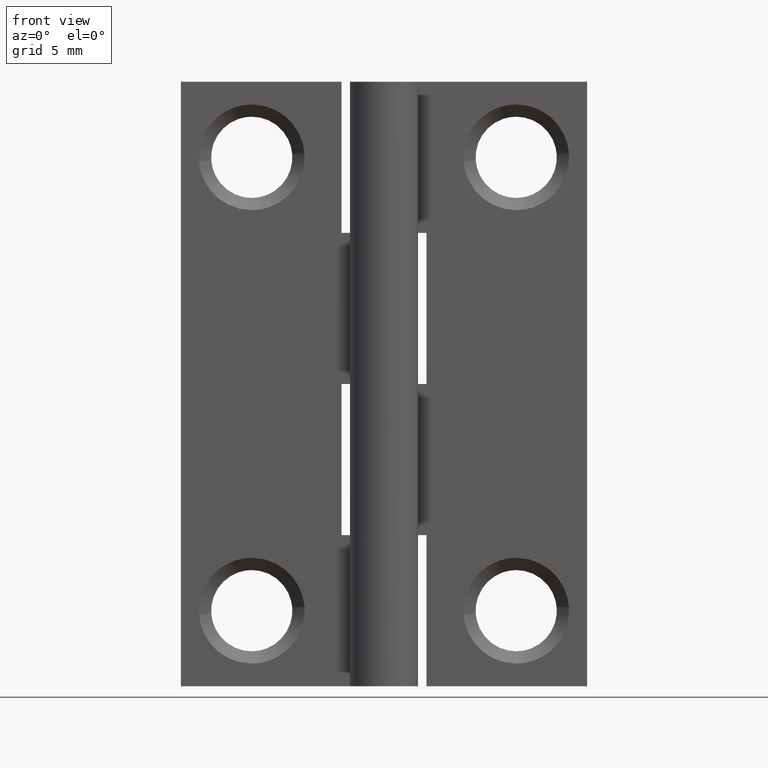
[diagram: clean part render]
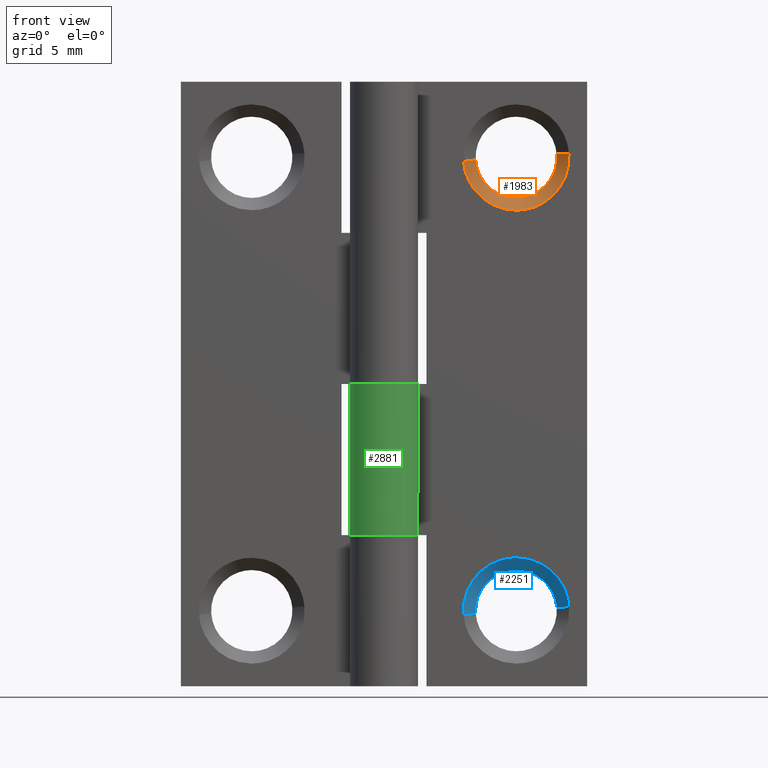
[diagram: same view with three faces highlighted in distinct colors, each labeled with its STEP entity id]
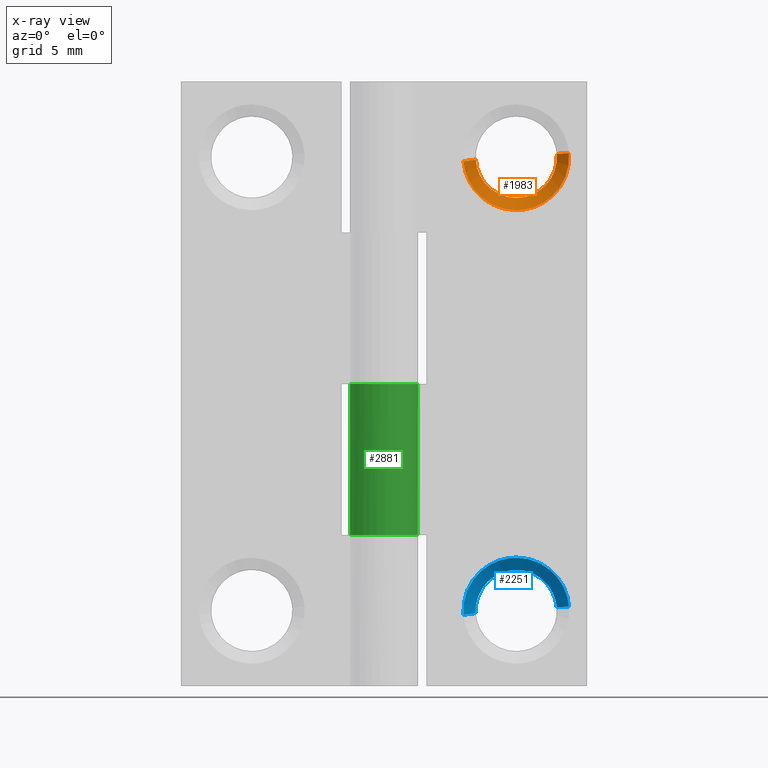
[diagram: x-ray of the same camera — body ghosted, the three highlighted faces saturated]
A machine part, front view with three faces highlighted in distinct colors.
The next image is the same camera in x-ray (body ghosted, the three faces saturated) — at least one of them is partly hidden behind the body in this view.
Their STEP definitions:

[orange] entity #1983 — the highlighted face is a freeform B-spline surface patch.
#1674=CARTESIAN_POINT('',(9.135958792531758,1.650000035762785,27.754683567730851));
#1675=VERTEX_POINT('',#1674);
#1676=CARTESIAN_POINT('',(7.0,1.650000035762785,25.849999964237220));
#1677=VERTEX_POINT('',#1676);
#1678=CARTESIAN_POINT('',(9.135958792531758,1.650000035762786,27.754683567730847));
#1679=CARTESIAN_POINT('',(8.917204494155522,1.650000035762785,25.849999964237220));
#1680=CARTESIAN_POINT('',(7.0,1.650000035762785,25.849999964237220));
#1688=(BOUNDED_CURVE()B_SPLINE_CURVE(2,(#1678,#1679,#1680),.UNSPECIFIED.,.F.,.U.)B_SPLINE_CURVE_WITH_KNOTS((3,3),(0.269767755879296,0.500000000000000),.UNSPECIFIED.)CURVE()GEOMETRIC_REPRESENTATION_ITEM()RATIONAL_B_SPLINE_CURVE((0.957343736455363,0.730266147779370,1.0))REPRESENTATION_ITEM(''));
#1689=EDGE_CURVE('',#1675,#1677,#1688,.T.);
#1728=CARTESIAN_POINT('',(4.854010156624582,1.650000035762785,27.868745638302801));
#1729=VERTEX_POINT('',#1728);
#1735=CARTESIAN_POINT('',(7.0,1.650000035762785,25.849999964237220));
#1736=CARTESIAN_POINT('',(4.977481922566955,1.650000035762786,25.849999964237227));
#1737=CARTESIAN_POINT('',(4.854010156624582,1.650000035762786,27.868745638302798));
#1745=(BOUNDED_CURVE()B_SPLINE_CURVE(2,(#1735,#1736,#1737),.UNSPECIFIED.,.F.,.U.)B_SPLINE_CURVE_WITH_KNOTS((3,3),(0.500000000000000,0.739332962237160),.UNSPECIFIED.)CURVE()GEOMETRIC_REPRESENTATION_ITEM()RATIONAL_B_SPLINE_CURVE((1.0,0.719603993288799,0.976072041662896))REPRESENTATION_ITEM(''));
#1746=EDGE_CURVE('',#1677,#1729,#1745,.T.);
#1773=CARTESIAN_POINT('',(9.143372303184854,1.650000035747364,28.168687058739959));
#1774=VERTEX_POINT('',#1773);
#1775=CARTESIAN_POINT('',(9.143372303184854,1.650000035747364,28.168687058739962));
#1776=CARTESIAN_POINT('',(9.150000035762785,1.650000035762786,28.084473731590130));
#1777=CARTESIAN_POINT('',(9.150000035762785,1.650000035762785,28.0));
#1778=CARTESIAN_POINT('',(9.150000035762785,1.650000035762786,27.876939942631537));
#1779=CARTESIAN_POINT('',(9.135958792531758,1.650000035762785,27.754683567730851));
#1787=(BOUNDED_CURVE()B_SPLINE_CURVE(2,(#1775,#1776,#1777,#1778,#1779),.UNSPECIFIED.,.F.,.U.)B_SPLINE_CURVE_WITH_KNOTS((3,2,3),(0.236331300613897,0.250000000000000,0.269767755879296),.UNSPECIFIED.)CURVE()GEOMETRIC_REPRESENTATION_ITEM()RATIONAL_B_SPLINE_CURVE((0.969723356132436,0.983986122559244,1.0,0.976840633407178,0.957343736455363))REPRESENTATION_ITEM(''));
#1788=EDGE_CURVE('',#1774,#1675,#1787,.T.);
#1876=CARTESIAN_POINT('',(9.791368486916333,1.000000059603890,28.219685464302589));
#1877=VERTEX_POINT('',#1876);
#1878=CARTESIAN_POINT('',(9.143372303184854,1.650000035747364,28.168687058739959));
#1879=CARTESIAN_POINT('',(9.791368486916333,1.000000059603890,28.219685464302589));
#1880=QUASI_UNIFORM_CURVE('',1,(#1878,#1879),.UNSPECIFIED.,.F.,.U.);
#1881=EDGE_CURVE('',#1774,#1877,#1880,.T.);
#1898=CARTESIAN_POINT('',(4.208631513083667,1.000000059603889,27.780314535697411));
#1899=VERTEX_POINT('',#1898);
#1915=CARTESIAN_POINT('',(4.854010156624582,1.650000035762785,27.868745638302801));
#1916=CARTESIAN_POINT('',(4.208631513083667,1.000000059603889,27.780314535697411));
#1917=QUASI_UNIFORM_CURVE('',1,(#1915,#1916),.UNSPECIFIED.,.F.,.U.);
#1918=EDGE_CURVE('',#1729,#1899,#1917,.T.);
#1924=CARTESIAN_POINT('',(4.867592168268005,1.666250035166739,27.899110386965162));
#1925=CARTESIAN_POINT('',(4.870192819903746,1.666250035166739,27.866065974833933));
#1926=CARTESIAN_POINT('',(5.040239699893550,1.666250035166738,25.705415502935782));
#1927=CARTESIAN_POINT('',(7.167412098478885,1.666250035166739,25.872827601414659));
#1928=CARTESIAN_POINT('',(9.294584497064220,1.666250035166738,26.040239699893554));
#1929=CARTESIAN_POINT('',(9.125984811217583,1.666250035166740,28.182501826715701));
#1930=CARTESIAN_POINT('',(9.124804182489871,1.666250035166738,28.197503137047327));
#1931=CARTESIAN_POINT('',(4.185115578668744,0.983343810215592,27.866820691717660));
#1932=CARTESIAN_POINT('',(4.188548568205655,0.983343810215591,27.823200423804515));
#1933=CARTESIAN_POINT('',(4.413018909317890,0.983343810215591,24.971034312433503));
#1934=CARTESIAN_POINT('',(7.220992298442193,0.983343810215591,25.192026610875700));
#1935=CARTESIAN_POINT('',(10.028965687566496,0.983343810215591,25.413018909317888));
#1936=CARTESIAN_POINT('',(9.806405714718538,0.983343810215592,28.240911490401558));
#1937=CARTESIAN_POINT('',(9.804847226063810,0.983343810215591,28.260713966327454));
#1945=(BOUNDED_SURFACE()B_SPLINE_SURFACE(2,1,((#1924,#1931),(#1925,#1932),(#1926,#1933),(#1927,#1934),(#1928,#1935),(#1929,#1936),(#1930,#1937)),.UNSPECIFIED.,.F.,.F.,.U.)B_SPLINE_SURFACE_WITH_KNOTS((3,1,2,1,3),(2,2),(0.0,0.104551761113601,4.771340555737529,9.438129350361457,9.485085216914408),(0.0,1.0),.UNSPECIFIED.)GEOMETRIC_REPRESENTATION_ITEM()RATIONAL_B_SPLINE_SURFACE(((1.013123585914346,1.013123585914346),(1.006561792957173,1.006561792957173),(0.707106781186548,0.707106781186548),(1.0,1.0),(0.707106781186548,0.707106781186548),(1.002947006068222,1.002947006068222),(1.005894012136445,1.005894012136445)))REPRESENTATION_ITEM('')SURFACE());
#1946=ORIENTED_EDGE('',*,*,#1788,.T.);
#1947=ORIENTED_EDGE('',*,*,#1689,.T.);
#1948=ORIENTED_EDGE('',*,*,#1746,.T.);
#1949=ORIENTED_EDGE('',*,*,#1918,.T.);
#1950=CARTESIAN_POINT('',(7.0,1.000000059604644,25.200000047683719));
#1951=VERTEX_POINT('',#1950);
#1952=CARTESIAN_POINT('',(7.0,1.000000059604644,25.200000047683719));
#1953=CARTESIAN_POINT('',(4.411706667446135,1.000000059604644,25.200000047683712));
#1954=CARTESIAN_POINT('',(4.208631513083667,1.000000059603889,27.780314535697411));
#1962=(BOUNDED_CURVE()B_SPLINE_CURVE(2,(#1952,#1953,#1954),.UNSPECIFIED.,.F.,.U.)B_SPLINE_CURVE_WITH_KNOTS((3,3),(0.500000000000000,0.736331300632058),.UNSPECIFIED.)CURVE()GEOMETRIC_REPRESENTATION_ITEM()RATIONAL_B_SPLINE_CURVE((1.0,0.723120658606027,0.969723356170336))REPRESENTATION_ITEM(''));
#1963=EDGE_CURVE('',#1951,#1899,#1962,.T.);
#1964=ORIENTED_EDGE('',*,*,#1963,.F.);
#1965=CARTESIAN_POINT('',(9.791368486916333,1.000000059603890,28.219685464302589));
#1966=CARTESIAN_POINT('',(9.799999952316284,1.000000059604644,28.110012297753784));
#1967=CARTESIAN_POINT('',(9.799999952316284,1.000000059604644,28.0));
#1968=CARTESIAN_POINT('',(9.799999952316284,1.000000059604644,25.200000047683719));
#1969=CARTESIAN_POINT('',(7.0,1.000000059604644,25.200000047683719));
#1977=(BOUNDED_CURVE()B_SPLINE_CURVE(2,(#1965,#1966,#1967,#1968,#1969),.UNSPECIFIED.,.F.,.U.)B_SPLINE_CURVE_WITH_KNOTS((3,2,3),(0.236331300632056,0.250000000000000,0.500000000000000),.UNSPECIFIED.)CURVE()GEOMETRIC_REPRESENTATION_ITEM()RATIONAL_B_SPLINE_CURVE((0.969723356170332,0.983986122580518,1.0,0.707106781186547,1.0))REPRESENTATION_ITEM(''));
#1978=EDGE_CURVE('',#1877,#1951,#1977,.T.);
#1979=ORIENTED_EDGE('',*,*,#1978,.F.);
#1980=ORIENTED_EDGE('',*,*,#1881,.F.);
#1981=EDGE_LOOP('',(#1946,#1947,#1948,#1949,#1964,#1979,#1980));
#1982=FACE_OUTER_BOUND('',#1981,.T.);
#1983=ADVANCED_FACE('',(#1982),#1945,.F.);

[blue] entity #2251 — the highlighted face is a freeform B-spline surface patch.
#2056=CARTESIAN_POINT('',(4.854010156624582,1.650000035762785,3.868745638302801));
#2057=VERTEX_POINT('',#2056);
#2101=CARTESIAN_POINT('',(9.143372303184854,1.650000035747365,4.168687058739958));
#2102=VERTEX_POINT('',#2101);
#2118=CARTESIAN_POINT('',(7.0,1.650000035762785,6.150000035762785));
#2119=VERTEX_POINT('',#2118);
#2120=CARTESIAN_POINT('',(7.0,1.650000035762785,6.150000035762785));
#2121=CARTESIAN_POINT('',(8.987439589904479,1.650000035762785,6.150000035762784));
#2122=CARTESIAN_POINT('',(9.143372303184854,1.650000035747364,4.168687058739958));
#2130=(BOUNDED_CURVE()B_SPLINE_CURVE(2,(#2120,#2121,#2122),.UNSPECIFIED.,.F.,.U.)B_SPLINE_CURVE_WITH_KNOTS((3,3),(0.0,0.236331300613897),.UNSPECIFIED.)CURVE()GEOMETRIC_REPRESENTATION_ITEM()RATIONAL_B_SPLINE_CURVE((1.0,0.723120658627304,0.969723356132436))REPRESENTATION_ITEM(''));
#2131=EDGE_CURVE('',#2119,#2102,#2130,.T.);
#2133=CARTESIAN_POINT('',(4.854010156624582,1.650000035762786,3.868745638302801));
#2134=CARTESIAN_POINT('',(4.849999964237214,1.650000035762785,3.934311557785394));
#2135=CARTESIAN_POINT('',(4.849999964237215,1.650000035762785,4.0));
#2136=CARTESIAN_POINT('',(4.849999964237214,1.650000035762785,6.150000035762784));
#2137=CARTESIAN_POINT('',(7.0,1.650000035762785,6.150000035762785));
#2145=(BOUNDED_CURVE()B_SPLINE_CURVE(2,(#2133,#2134,#2135,#2136,#2137),.UNSPECIFIED.,.F.,.U.)B_SPLINE_CURVE_WITH_KNOTS((3,2,3),(0.739332962237160,0.750000000000000,1.0),.UNSPECIFIED.)CURVE()GEOMETRIC_REPRESENTATION_ITEM()RATIONAL_B_SPLINE_CURVE((0.976072041662896,0.987502787897748,1.0,0.707106781186547,1.0))REPRESENTATION_ITEM(''));
#2146=EDGE_CURVE('',#2057,#2119,#2145,.T.);
#2185=CARTESIAN_POINT('',(9.127172398585335,1.666250035166739,4.167412098478885));
#2186=CARTESIAN_POINT('',(8.959760300106451,1.666250035166738,6.294584497064221));
#2187=CARTESIAN_POINT('',(6.832587901521115,1.666250035166739,6.127172398585335));
#2188=CARTESIAN_POINT('',(4.705415502935780,1.666250035166738,5.959760300106453));
#2189=CARTESIAN_POINT('',(4.872827601414665,1.666250035166739,3.832587901521115));
#2190=CARTESIAN_POINT('',(9.807973389124303,0.983343810215591,4.220992298442193));
#2191=CARTESIAN_POINT('',(9.586981090682111,0.983343810215591,7.028965687566495));
#2192=CARTESIAN_POINT('',(6.779007701557807,0.983343810215591,6.807973389124303));
#2193=CARTESIAN_POINT('',(3.971034312433504,0.983343810215591,6.586981090682111));
#2194=CARTESIAN_POINT('',(4.192026610875697,0.983343810215591,3.779007701557807));
#2202=(BOUNDED_SURFACE()B_SPLINE_SURFACE(2,1,((#2185,#2190),(#2186,#2191),(#2187,#2192),(#2188,#2193),(#2189,#2194)),.UNSPECIFIED.,.F.,.F.,.U.)B_SPLINE_SURFACE_WITH_KNOTS((3,2,3),(2,2),(0.0,4.666788794623928,9.333577589247856),(0.0,1.0),.UNSPECIFIED.)GEOMETRIC_REPRESENTATION_ITEM()RATIONAL_B_SPLINE_SURFACE(((1.0,1.0),(0.707106781186548,0.707106781186548),(1.0,1.0),(0.707106781186548,0.707106781186548),(1.0,1.0)))REPRESENTATION_ITEM('')SURFACE());
#2203=ORIENTED_EDGE('',*,*,#2131,.T.);
#2204=CARTESIAN_POINT('',(9.791368486916332,1.000000059603889,4.219685464302588));
#2205=VERTEX_POINT('',#2204);
#2206=CARTESIAN_POINT('',(9.143372303184854,1.650000035747365,4.168687058739958));
#2207=CARTESIAN_POINT('',(9.791368486916332,1.000000059603889,4.219685464302588));
#2208=QUASI_UNIFORM_CURVE('',1,(#2206,#2207),.UNSPECIFIED.,.F.,.U.);
#2209=EDGE_CURVE('',#2102,#2205,#2208,.T.);
#2210=ORIENTED_EDGE('',*,*,#2209,.T.);
#2211=CARTESIAN_POINT('',(7.0,1.000000059604644,6.799999952316286));
#2212=VERTEX_POINT('',#2211);
#2213=CARTESIAN_POINT('',(7.0,1.000000059604644,6.799999952316286));
#2214=CARTESIAN_POINT('',(9.588293332553850,1.000000059604644,6.799999952316286));
#2215=CARTESIAN_POINT('',(9.791368486916332,1.000000059603889,4.219685464302588));
#2223=(BOUNDED_CURVE()B_SPLINE_CURVE(2,(#2213,#2214,#2215),.UNSPECIFIED.,.F.,.U.)B_SPLINE_CURVE_WITH_KNOTS((3,3),(0.0,0.236331300632057),.UNSPECIFIED.)CURVE()GEOMETRIC_REPRESENTATION_ITEM()RATIONAL_B_SPLINE_CURVE((1.0,0.723120658606029,0.969723356170333))REPRESENTATION_ITEM(''));
#2224=EDGE_CURVE('',#2212,#2205,#2223,.T.);
#2225=ORIENTED_EDGE('',*,*,#2224,.F.);
#2226=CARTESIAN_POINT('',(4.208631513083668,1.000000059603889,3.780314535697411));
#2227=VERTEX_POINT('',#2226);
#2228=CARTESIAN_POINT('',(4.208631513083668,1.000000059603889,3.780314535697410));
#2229=CARTESIAN_POINT('',(4.200000047683715,1.000000059604644,3.889987702246212));
#2230=CARTESIAN_POINT('',(4.200000047683715,1.000000059604644,4.0));
#2231=CARTESIAN_POINT('',(4.200000047683716,1.000000059604644,6.799999952316285));
#2232=CARTESIAN_POINT('',(7.0,1.000000059604644,6.799999952316286));
#2240=(BOUNDED_CURVE()B_SPLINE_CURVE(2,(#2228,#2229,#2230,#2231,#2232),.UNSPECIFIED.,.F.,.U.)B_SPLINE_CURVE_WITH_KNOTS((3,2,3),(0.736331300632056,0.750000000000000,1.0),.UNSPECIFIED.)CURVE()GEOMETRIC_REPRESENTATION_ITEM()RATIONAL_B_SPLINE_CURVE((0.969723356170333,0.983986122580518,1.0,0.707106781186547,1.0))REPRESENTATION_ITEM(''));
#2241=EDGE_CURVE('',#2227,#2212,#2240,.T.);
#2242=ORIENTED_EDGE('',*,*,#2241,.F.);
#2243=CARTESIAN_POINT('',(4.854010156624582,1.650000035762785,3.868745638302801));
#2244=CARTESIAN_POINT('',(4.208631513083668,1.000000059603889,3.780314535697411));
#2245=QUASI_UNIFORM_CURVE('',1,(#2243,#2244),.UNSPECIFIED.,.F.,.U.);
#2246=EDGE_CURVE('',#2057,#2227,#2245,.T.);
#2247=ORIENTED_EDGE('',*,*,#2246,.F.);
#2248=ORIENTED_EDGE('',*,*,#2146,.T.);
#2249=EDGE_LOOP('',(#2203,#2210,#2225,#2242,#2247,#2248));
#2250=FACE_OUTER_BOUND('',#2249,.T.);
#2251=ADVANCED_FACE('',(#2250),#2202,.F.);

[green] entity #2881 — the highlighted face is a freeform B-spline surface patch.
#2317=CARTESIAN_POINT('',(0.0,1.799998999999940,16.0));
#2318=VERTEX_POINT('',#2317);
#2319=CARTESIAN_POINT('',(1.528888485142075,0.949999999999989,16.0));
#2320=VERTEX_POINT('',#2319);
#2321=CARTESIAN_POINT('',(0.0,1.799998999999940,16.0));
#2322=CARTESIAN_POINT('',(-1.392801052929096,1.799998304105292,15.999999999999998));
#2323=CARTESIAN_POINT('',(-1.742381113599922,0.451781698599291,16.0));
#2324=CARTESIAN_POINT('',(-2.091961174270749,-0.896434906906710,15.999999999999998));
#2325=CARTESIAN_POINT('',(-0.874642784226802,-1.573213772255252,16.0));
#2326=CARTESIAN_POINT('',(0.342675605817146,-2.249992637603796,15.999999999999998));
#2327=CARTESIAN_POINT('',(1.303326767780340,-1.241506385275981,16.0));
#2328=CARTESIAN_POINT('',(2.263977929743533,-0.233020132948167,15.999999999999998));
#2329=CARTESIAN_POINT('',(1.528888485142075,0.949999999999989,16.0));
#2337=(BOUNDED_CURVE()B_SPLINE_CURVE(2,(#2321,#2322,#2323,#2324,#2325,#2326,#2327,#2328,#2329),.UNSPECIFIED.,.F.,.U.)B_SPLINE_CURVE_WITH_KNOTS((3,2,2,2,3),(0.0,0.250000000000000,0.500000000000000,0.750000000000000,1.0),.UNSPECIFIED.)CURVE()GEOMETRIC_REPRESENTATION_ITEM()RATIONAL_B_SPLINE_CURVE((1.0,0.790882628363956,1.0,0.790882628363956,1.0,0.790882628363956,1.0,0.790882628363956,1.0))REPRESENTATION_ITEM(''));
#2338=EDGE_CURVE('',#2318,#2320,#2337,.T.);
#2382=CARTESIAN_POINT('',(0.001897366346215,1.799998999999940,16.0));
#2383=VERTEX_POINT('',#2382);
#2389=CARTESIAN_POINT('',(0.001897366346215,1.799998999999940,16.0));
#2390=CARTESIAN_POINT('',(0.0,1.799998999999940,16.0));
#2391=QUASI_UNIFORM_CURVE('',1,(#2389,#2390),.UNSPECIFIED.,.F.,.U.);
#2392=EDGE_CURVE('',#2383,#2318,#2391,.T.);
#2543=CARTESIAN_POINT('',(1.528888485142075,0.949999999999989,7.999999999999900));
#2544=VERTEX_POINT('',#2543);
#2545=CARTESIAN_POINT('',(0.0,1.799998999999940,7.999999999999900));
#2546=VERTEX_POINT('',#2545);
#2547=CARTESIAN_POINT('',(1.528888485142075,0.949999999999989,7.999999999999900));
#2548=CARTESIAN_POINT('',(2.263977929743534,-0.233020132948167,7.999999999999900));
#2549=CARTESIAN_POINT('',(1.303326767780340,-1.241506385275981,7.999999999999900));
#2550=CARTESIAN_POINT('',(0.342675605817147,-2.249992637603795,7.999999999999900));
#2551=CARTESIAN_POINT('',(-0.874642784226801,-1.573213772255253,7.999999999999900));
#2552=CARTESIAN_POINT('',(-2.091961174270748,-0.896434906906711,7.999999999999900));
#2553=CARTESIAN_POINT('',(-1.742381113599922,0.451781698599291,7.999999999999900));
#2554=CARTESIAN_POINT('',(-1.392801052929096,1.799998304105292,7.999999999999900));
#2555=CARTESIAN_POINT('',(0.0,1.799998999999940,7.999999999999900));
#2563=(BOUNDED_CURVE()B_SPLINE_CURVE(2,(#2547,#2548,#2549,#2550,#2551,#2552,#2553,#2554,#2555),.UNSPECIFIED.,.F.,.U.)B_SPLINE_CURVE_WITH_KNOTS((3,2,2,2,3),(0.0,0.250000000000000,0.500000000000000,0.750000000000000,1.0),.UNSPECIFIED.)CURVE()GEOMETRIC_REPRESENTATION_ITEM()RATIONAL_B_SPLINE_CURVE((1.0,0.790882628363956,1.0,0.790882628363956,1.0,0.790882628363956,1.0,0.790882628363956,1.0))REPRESENTATION_ITEM(''));
#2564=EDGE_CURVE('',#2544,#2546,#2563,.T.);
#2566=CARTESIAN_POINT('',(0.001897366346215,1.799998999999940,7.999999999999900));
#2567=VERTEX_POINT('',#2566);
#2568=CARTESIAN_POINT('',(0.0,1.799998999999940,7.999999999999900));
#2569=CARTESIAN_POINT('',(0.001897366346215,1.799998999999940,7.999999999999900));
#2570=QUASI_UNIFORM_CURVE('',1,(#2568,#2569),.UNSPECIFIED.,.F.,.U.);
#2571=EDGE_CURVE('',#2546,#2567,#2570,.T.);
#2747=CARTESIAN_POINT('',(1.528888485142075,0.949999999999989,7.999999999999900));
#2748=CARTESIAN_POINT('',(1.528888485142075,0.949999999999989,16.0));
#2749=QUASI_UNIFORM_CURVE('',1,(#2747,#2748),.UNSPECIFIED.,.F.,.U.);
#2750=EDGE_CURVE('',#2544,#2320,#2749,.T.);
#2847=CARTESIAN_POINT('',(1.502040872496231,0.991903834729335,7.799999999999896));
#2848=CARTESIAN_POINT('',(1.502040872496231,0.991903834729335,16.204999999999998));
#2849=CARTESIAN_POINT('',(2.741616458740214,-0.885186594702266,7.799999999999897));
#2850=CARTESIAN_POINT('',(2.741616458740214,-0.885186594702266,16.205000000000009));
#2851=CARTESIAN_POINT('',(0.638397701120518,-1.682987930795713,7.799999999999896));
#2852=CARTESIAN_POINT('',(0.638397701120518,-1.682987930795713,16.204999999999998));
#2853=CARTESIAN_POINT('',(-1.464821056499178,-2.480789266889159,7.799999999999897));
#2854=CARTESIAN_POINT('',(-1.464821056499178,-2.480789266889159,16.205000000000009));
#2855=CARTESIAN_POINT('',(-1.782014811669085,-0.253817278749875,7.799999999999896));
#2856=CARTESIAN_POINT('',(-1.782014811669085,-0.253817278749875,16.204999999999998));
#2857=CARTESIAN_POINT('',(-2.099208566838993,1.973154709389410,7.799999999999897));
#2858=CARTESIAN_POINT('',(-2.099208566838993,1.973154709389410,16.205000000000009));
#2859=CARTESIAN_POINT('',(0.143117811250007,1.794301338154493,7.799999999999896));
#2860=CARTESIAN_POINT('',(0.143117811250007,1.794301338154493,16.204999999999998));
#2868=(BOUNDED_SURFACE()B_SPLINE_SURFACE(1,2,((#2847,#2849,#2851,#2853,#2855,#2857,#2859),(#2848,#2850,#2852,#2854,#2856,#2858,#2860)),.UNSPECIFIED.,.F.,.F.,.U.)B_SPLINE_SURFACE_WITH_KNOTS((2,2),(3,2,2,3),(0.0,8.405000000000108),(0.0,3.459968446201029,6.919936892402059,10.379905338603090),.UNSPECIFIED.)GEOMETRIC_REPRESENTATION_ITEM()RATIONAL_B_SPLINE_SURFACE(((1.0,0.624788514543960,1.0,0.624788514543960,1.0,0.624788514543960,1.0),(1.0,0.624788514543960,1.0,0.624788514543960,1.0,0.624788514543960,1.0)))REPRESENTATION_ITEM('')SURFACE());
#2869=ORIENTED_EDGE('',*,*,#2338,.F.);
#2870=ORIENTED_EDGE('',*,*,#2392,.F.);
#2871=CARTESIAN_POINT('',(0.001897366346215,1.799998999999940,7.999999999999900));
#2872=CARTESIAN_POINT('',(0.001897366346215,1.799998999999940,16.0));
#2873=QUASI_UNIFORM_CURVE('',1,(#2871,#2872),.UNSPECIFIED.,.F.,.U.);
#2874=EDGE_CURVE('',#2567,#2383,#2873,.T.);
#2875=ORIENTED_EDGE('',*,*,#2874,.F.);
#2876=ORIENTED_EDGE('',*,*,#2571,.F.);
#2877=ORIENTED_EDGE('',*,*,#2564,.F.);
#2878=ORIENTED_EDGE('',*,*,#2750,.T.);
#2879=EDGE_LOOP('',(#2869,#2870,#2875,#2876,#2877,#2878));
#2880=FACE_OUTER_BOUND('',#2879,.T.);
#2881=ADVANCED_FACE('',(#2880),#2868,.T.);